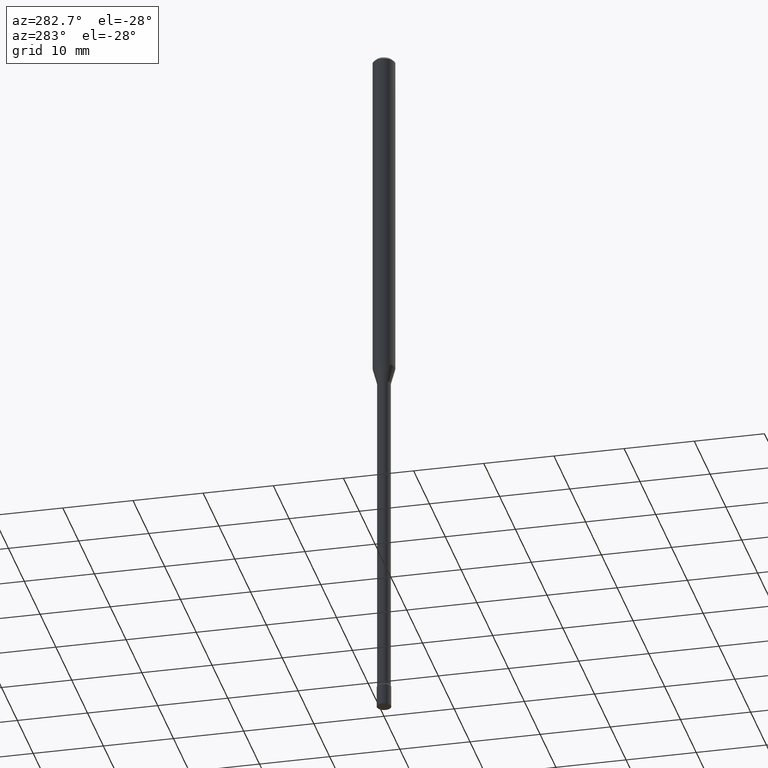
[diagram: clean part render]
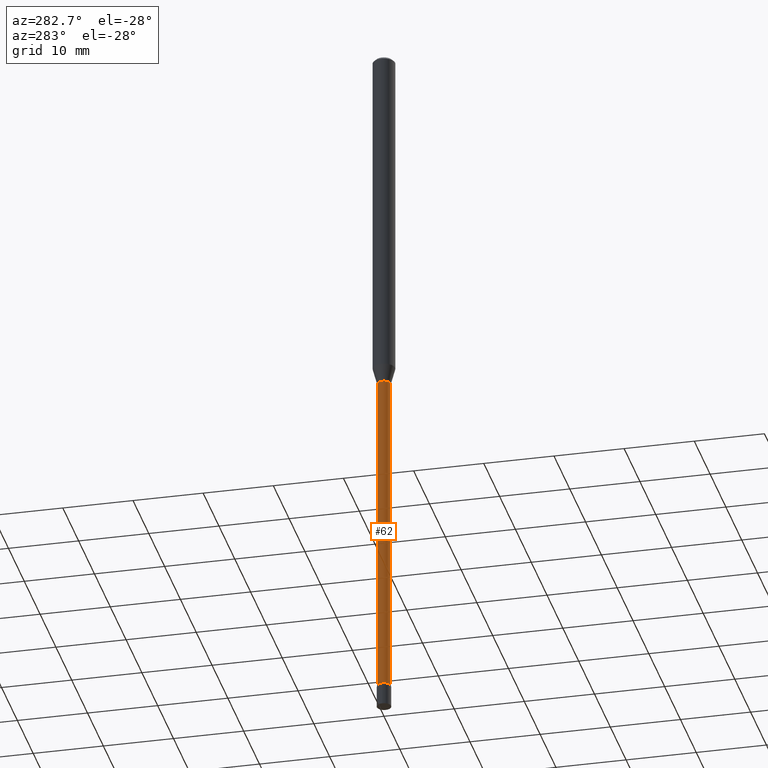
[diagram: same view with one face highlighted and labeled with its STEP entity id]
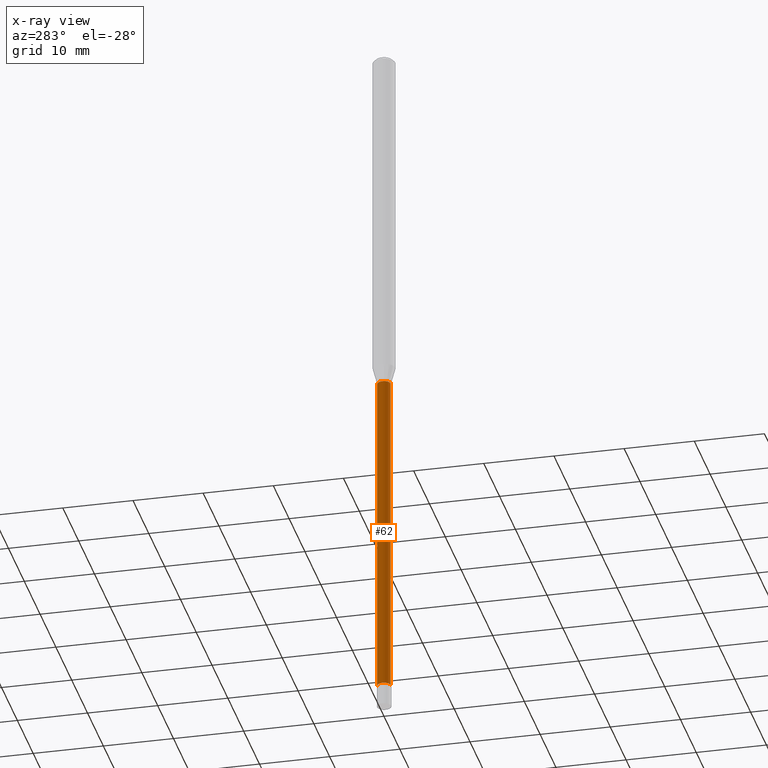
[diagram: x-ray of the same camera — body ghosted, the highlighted face saturated]
A machine part, auxiliary view. The second image highlights one B-rep face of the part: STEP entity #62.
The next image is the same camera in x-ray: the body ghosted, the highlighted face saturated — about 0% of this face is hidden behind the body in this view.
In plain terms, the highlighted cylindrical surface (edge-blend (fillet) strip) has radius 0.955 mm, axis along (-0, 0, 1).
Its self-contained STEP definition (entity closure, byte-faithful):
#22 = LINE ( 'NONE', #216, #248 ) ;
#33 = ORIENTED_EDGE ( 'NONE', *, *, #333, .F. ) ;
#39 = VERTEX_POINT ( 'NONE', #126 ) ;
#58 = LINE ( 'NONE', #83, #177 ) ;
#62 = ADVANCED_FACE ( 'NONE', ( #400 ), #85, .T. ) ;
#83 = CARTESIAN_POINT ( 'NONE',  ( -2.625593966810044412E-16, -0.03760000000000011944, 1.312797826053943315E-16 ) ) ;
#85 = CYLINDRICAL_SURFACE ( 'NONE', #287, 0.03760000000000011944 ) ;
#96 = DIRECTION ( 'NONE',  ( -2.445467241242069311E-29, 3.491483579930689334E-15, 1.000000000000000000 ) ) ;
#126 = CARTESIAN_POINT ( 'NONE',  ( 2.671640686458930339E-16, 0.03759999999999300013, -2.001974787463811190 ) ) ;
#127 = CARTESIAN_POINT ( 'NONE',  ( -2.625593966809106161E-16, -0.03760000000001376130, -3.871861204020250025 ) ) ;
#144 = CARTESIAN_POINT ( 'NONE',  ( 2.756905814750144804E-16, 0.03759999999998672737, -3.871861204020250025 ) ) ;
#171 = DIRECTION ( 'NONE',  ( -2.445467241242069311E-29, 3.491483579930688939E-15, 1.000000000000000000 ) ) ;
#174 = CARTESIAN_POINT ( 'NONE',  ( 4.895763760535303635E-29, -6.989862097865126997E-15, -2.001974787463811190 ) ) ;
#177 = VECTOR ( 'NONE', #96, 39.37007874015748143 ) ;
#202 = AXIS2_PLACEMENT_3D ( 'NONE', #174, #341, #408 ) ;
#203 = CARTESIAN_POINT ( 'NONE',  ( 0.000000000000000000, 0.000000000000000000, 0.000000000000000000 ) ) ;
#216 = CARTESIAN_POINT ( 'NONE',  ( 2.671640686457984692E-16, 0.03760000000000011944, -1.312797826053943315E-16 ) ) ;
#232 = ORIENTED_EDGE ( 'NONE', *, *, #430, .T. ) ;
#248 = VECTOR ( 'NONE', #337, 39.37007874015748143 ) ;
#251 = DIRECTION ( 'NONE',  ( -2.445467241242069311E-29, 3.491483579930688939E-15, 1.000000000000000000 ) ) ;
#276 = CIRCLE ( 'NONE', #202, 0.03759999999999999454 ) ;
#287 = AXIS2_PLACEMENT_3D ( 'NONE', #203, #251, #338 ) ;
#292 = CARTESIAN_POINT ( 'NONE',  ( 9.468509737067598490E-29, -1.351853981760736890E-14, -3.871861204020250025 ) ) ;
#296 = VERTEX_POINT ( 'NONE', #144 ) ;
#331 = CIRCLE ( 'NONE', #410, 0.03760000000000024434 ) ;
#333 = EDGE_CURVE ( 'NONE', #39, #471, #276, .T. ) ;
#337 = DIRECTION ( 'NONE',  ( -2.445467241242069311E-29, 3.491483579930689334E-15, 1.000000000000000000 ) ) ;
#338 = DIRECTION ( 'NONE',  ( -6.982962677686265922E-15, -1.000000000000000000, 3.491483579930689334E-15 ) ) ;
#341 = DIRECTION ( 'NONE',  ( -2.445467241242069311E-29, 3.491483579930688939E-15, 1.000000000000000000 ) ) ;
#345 = EDGE_LOOP ( 'NONE', ( #440, #418, #232, #33 ) ) ;
#400 = FACE_OUTER_BOUND ( 'NONE', #345, .T. ) ;
#408 = DIRECTION ( 'NONE',  ( -6.982962677686265922E-15, -1.000000000000000000, 0.000000000000000000 ) ) ;
#410 = AXIS2_PLACEMENT_3D ( 'NONE', #292, #171, #498 ) ;
#418 = ORIENTED_EDGE ( 'NONE', *, *, #494, .T. ) ;
#421 = CARTESIAN_POINT ( 'NONE',  ( -2.625593966809546444E-16, -0.03760000000000698894, -2.001974787463811190 ) ) ;
#430 = EDGE_CURVE ( 'NONE', #481, #471, #58, .T. ) ;
#440 = ORIENTED_EDGE ( 'NONE', *, *, #455, .F. ) ;
#455 = EDGE_CURVE ( 'NONE', #296, #39, #22, .T. ) ;
#471 = VERTEX_POINT ( 'NONE', #421 ) ;
#481 = VERTEX_POINT ( 'NONE', #127 ) ;
#494 = EDGE_CURVE ( 'NONE', #296, #481, #331, .T. ) ;
#498 = DIRECTION ( 'NONE',  ( -6.982962677686266711E-15, -1.000000000000000000, 0.000000000000000000 ) ) ;